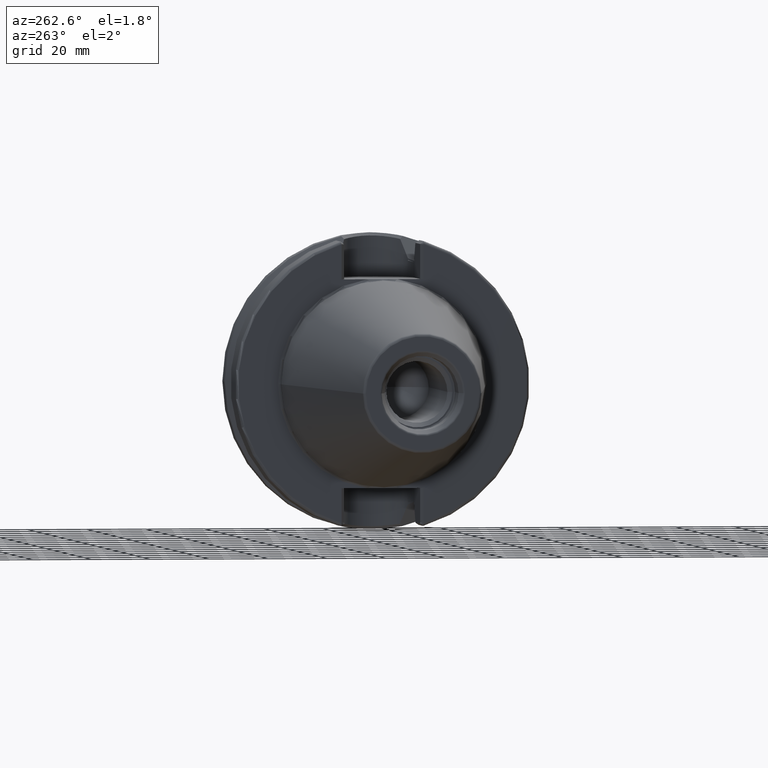
[diagram: clean part render]
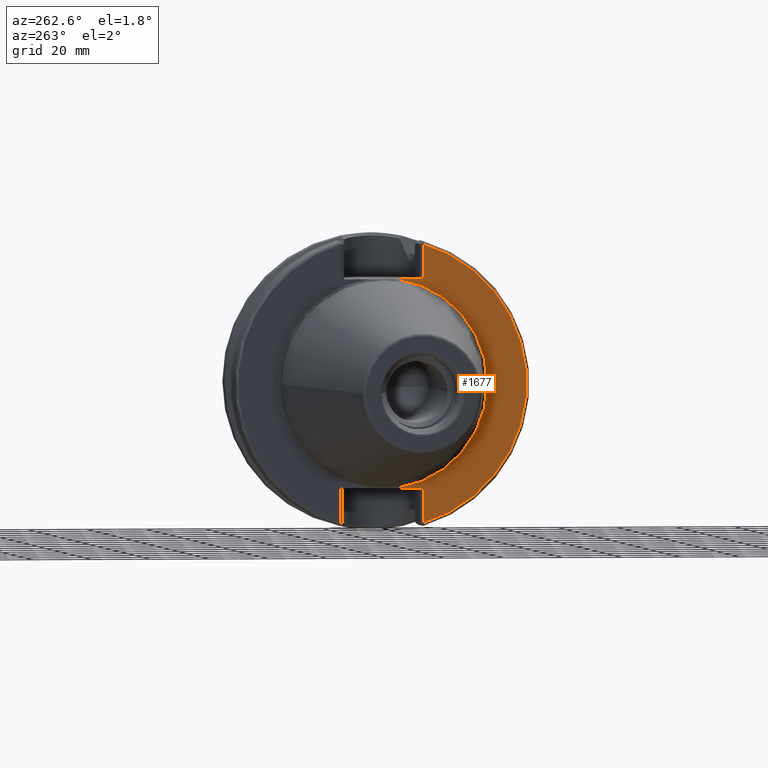
[diagram: same view with one face highlighted and labeled with its STEP entity id]
A machine part, auxiliary view. The second image highlights one B-rep face of the part: STEP entity #1677.
In plain terms, the highlighted planar face has unit normal (1, 0, 0).
Its self-contained STEP definition (entity closure, byte-faithful):
#111=CARTESIAN_POINT('',(3.E0,0.E0,0.E0));
#112=DIRECTION('',(-1.E0,0.E0,0.E0));
#113=DIRECTION('',(0.E0,-1.448140381786E-1,-9.894588896697E-1));
#114=AXIS2_PLACEMENT_3D('',#111,#112,#113);
#135=DIRECTION('',(-5.798787725116E-7,5.799135254102E-7,-9.999999999997E-1));
#136=VECTOR('',#135,1.177335004623E1);
#137=CARTESIAN_POINT('',(3.E0,-1.39025E1,-3.52E1));
#138=LINE('',#137,#136);
#139=DIRECTION('',(1.226013541690E-6,-1.226161370859E-6,-9.999999999985E-1));
#140=VECTOR('',#139,1.177335390066E1);
#141=CARTESIAN_POINT('',(2.999985565709E0,-1.390248556397E1,4.697335390064E1));
#142=LINE('',#141,#140);
#593=CARTESIAN_POINT('',(2.999993172884E0,-1.390249317248E1,-4.697335004622E1));
#605=CARTESIAN_POINT('',(3.E0,0.E0,0.E0));
#606=DIRECTION('',(-1.E0,0.E0,0.E0));
#607=DIRECTION('',(0.E0,-2.837968955579E-1,-9.588844153868E-1));
#608=AXIS2_PLACEMENT_3D('',#605,#606,#607);
#679=DIRECTION('',(0.E0,1.E0,0.E0));
#680=VECTOR('',#679,8.750740591798E0);
#681=CARTESIAN_POINT('',(3.E0,-1.39025E1,3.52E1));
#682=LINE('',#681,#680);
#720=CARTESIAN_POINT('',(3.E0,0.E0,0.E0));
#721=DIRECTION('',(1.E0,0.E0,0.E0));
#722=DIRECTION('',(0.E0,-1.448140381786E-1,9.894588896697E-1));
#723=AXIS2_PLACEMENT_3D('',#720,#721,#722);
#745=DIRECTION('',(0.E0,-1.E0,0.E0));
#746=VECTOR('',#745,8.750740591798E0);
#747=CARTESIAN_POINT('',(3.E0,-5.151759408202E0,-3.52E1));
#748=LINE('',#747,#746);
#1302=CARTESIAN_POINT('',(3.E0,-3.5575E1,0.E0));
#1304=VERTEX_POINT('',#1302);
#1368=CARTESIAN_POINT('',(3.E0,-5.151759408202E0,3.52E1));
#1369=VERTEX_POINT('',#1368);
#1376=CARTESIAN_POINT('',(3.E0,-5.151759408202E0,-3.52E1));
#1377=VERTEX_POINT('',#1376);
#1406=CARTESIAN_POINT('',(2.999985565709E0,-1.390248556397E1,4.697335390064E1));
#1407=CARTESIAN_POINT('',(3.E0,-1.39025E1,3.52E1));
#1408=VERTEX_POINT('',#1406);
#1409=VERTEX_POINT('',#1407);
#1431=VERTEX_POINT('',#593);
#1433=CARTESIAN_POINT('',(3.E0,-1.39025E1,-3.52E1));
#1434=VERTEX_POINT('',#1433);
#1657=CARTESIAN_POINT('',(3.E0,0.E0,0.E0));
#1658=DIRECTION('',(1.E0,0.E0,0.E0));
#1659=DIRECTION('',(0.E0,-1.E0,0.E0));
#1660=AXIS2_PLACEMENT_3D('',#1657,#1658,#1659);
#1661=PLANE('',#1660);
#1663=ORIENTED_EDGE('',*,*,#1662,.F.);
#1665=ORIENTED_EDGE('',*,*,#1664,.F.);
#1666=ORIENTED_EDGE('',*,*,#1629,.T.);
#1668=ORIENTED_EDGE('',*,*,#1667,.F.);
#1670=ORIENTED_EDGE('',*,*,#1669,.F.);
#1672=ORIENTED_EDGE('',*,*,#1671,.F.);
#1674=ORIENTED_EDGE('',*,*,#1673,.F.);
#1675=EDGE_LOOP('',(#1663,#1665,#1666,#1668,#1670,#1672,#1674));
#1676=FACE_OUTER_BOUND('',#1675,.F.);
#1677=ADVANCED_FACE('',(#1676),#1661,.F.);
#115=CIRCLE('',#114,3.5575E1);
#609=CIRCLE('',#608,4.89875E1);
#724=CIRCLE('',#723,3.5575E1);
#1629=EDGE_CURVE('',#1377,#1304,#115,.T.);
#1662=EDGE_CURVE('',#1434,#1431,#138,.T.);
#1664=EDGE_CURVE('',#1377,#1434,#748,.T.);
#1667=EDGE_CURVE('',#1369,#1304,#724,.T.);
#1669=EDGE_CURVE('',#1409,#1369,#682,.T.);
#1671=EDGE_CURVE('',#1408,#1409,#142,.T.);
#1673=EDGE_CURVE('',#1431,#1408,#609,.T.);